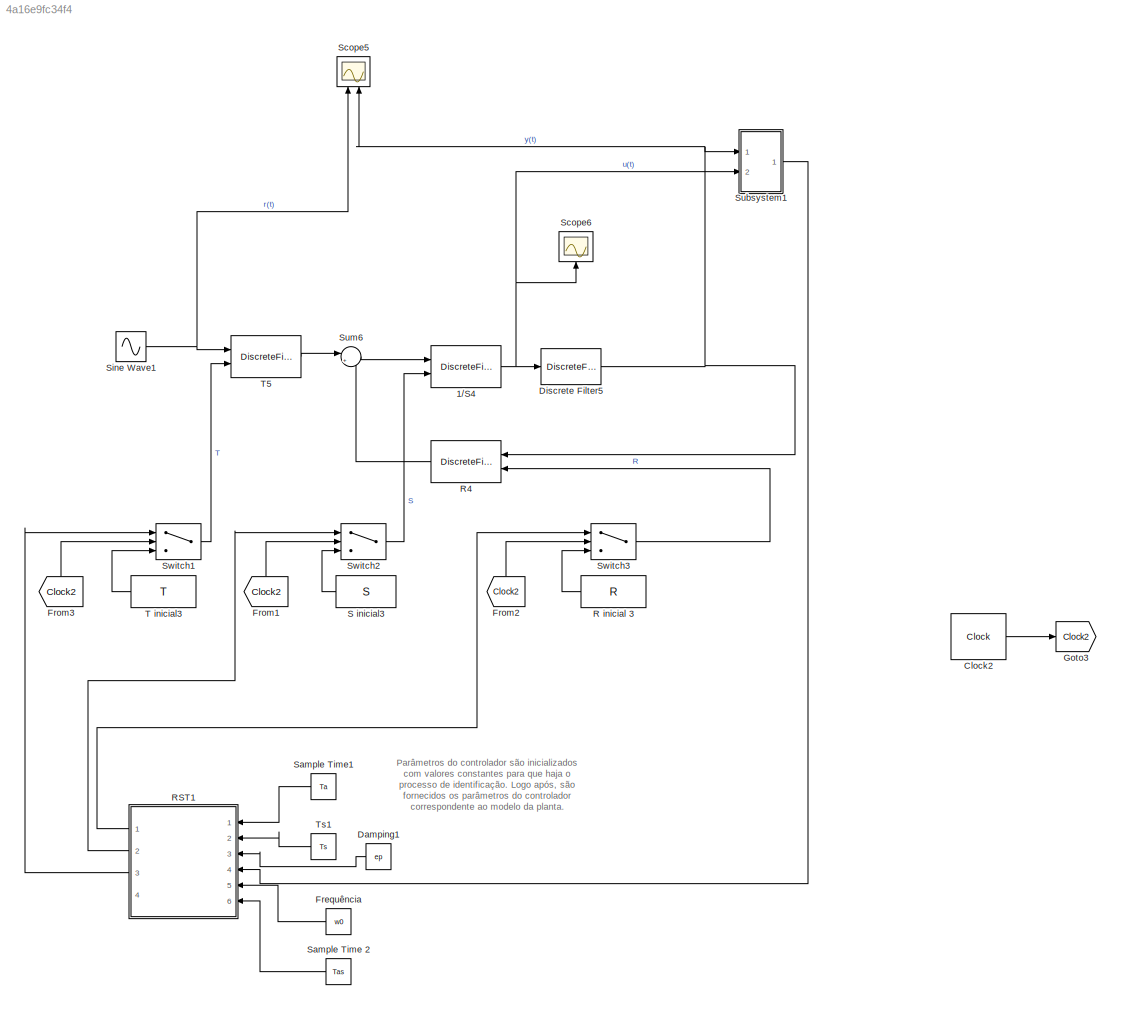
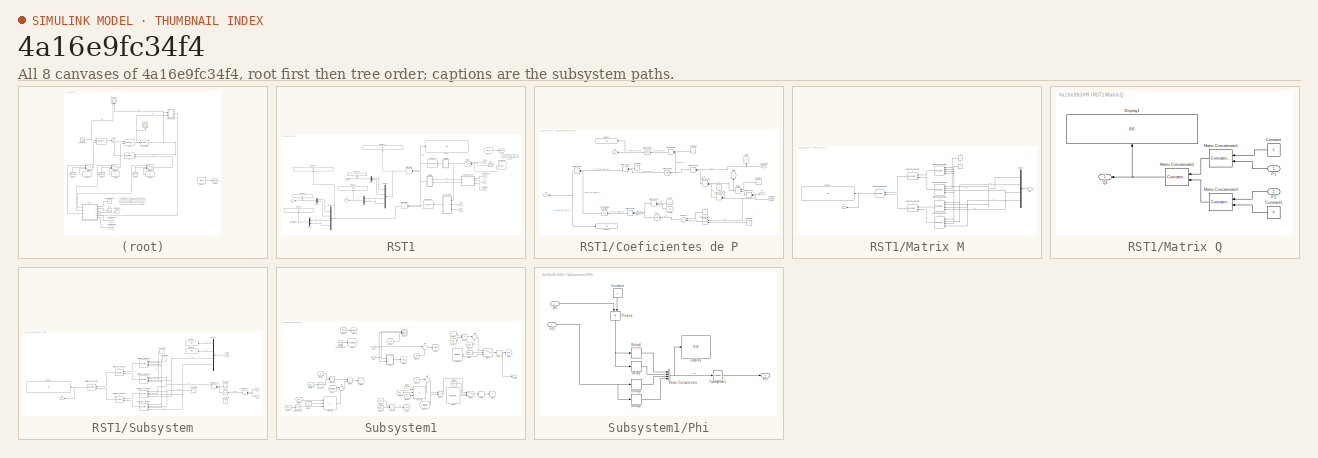
[diagram: thumbnail index - all 8 canvases of the model, root first then tree order]
MODEL slx_4a16e9fc34f4
KIND model
CONFIG AbsTol = auto
CONFIG EnableMultiTasking = off
CONFIG FixedStep = auto
CONFIG MaxStep = auto
CONFIG MinStep = auto
CONFIG RelTol = 1e-3
CONFIG SampleTimeConstraint = Unconstrained
CONFIG Solver = VariableStepAuto
CONFIG SolverName = VariableStepAuto
CONFIG StartTime = 0.0
CONFIG StopTime = 100
BLOCK [DiscreteFilter] 1//S4
  Denominator = 1
  DenominatorSource = Input port
  InputPortMap = u0,p3
  Numerator = 1
  Ports = [2, 1]
  a0EqualsOne = on
BLOCK [Clock] Clock2
  DisplayTime = on
BLOCK [Constant] Damping1
  Value = ep
BLOCK [DiscreteFilter] Discrete Filter5
  Denominator = A
  InputPortMap = u0
  Numerator = B
  Ports = [1, 1]
  a0EqualsOne = on
BLOCK [Constant] Frequência
  Value = w0
BLOCK [From] From1
  GotoTag = Clock2
BLOCK [From] From2
  GotoTag = Clock2
BLOCK [From] From3
  GotoTag = Clock2
BLOCK [Goto] Goto3
  GotoTag = Clock2
BLOCK [Constant] R inicial 3
  Value = R
BLOCK [DiscreteFilter] R4
  Denominator = 1
  InputPortMap = u0,p1
  Numerator = [-620.2 131.3]
  NumeratorSource = Input port
  Ports = [2, 1]
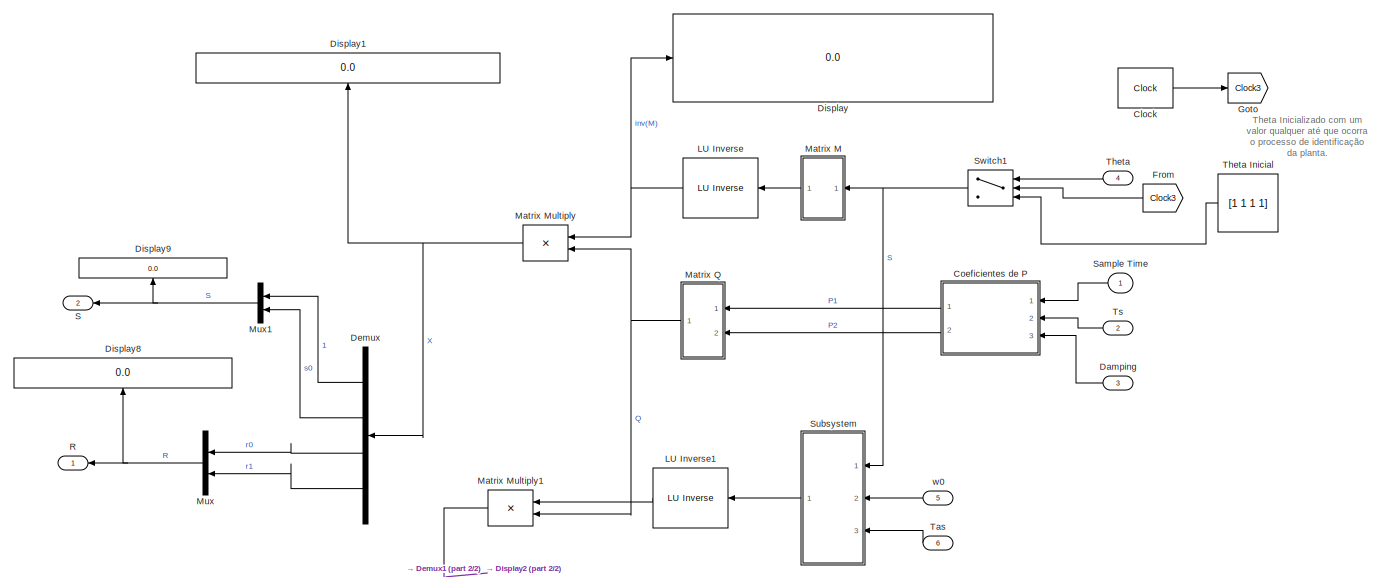
[diagram: RST1 - part 1/2, most of the canvas]
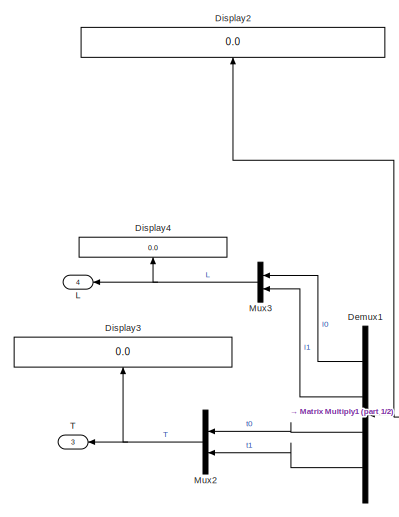
[diagram: RST1 - part 2/2, middle left region]
BLOCK [SubSystem] RST1
  Ports = [6, 4]
  RequestExecContextInheritance = off
BLOCK [Reference] RST1/ LU Inverse  REF=dspinverses/ LU Inverse
  Ports = [1, 1]
  SourceBlock = dspinverses/ LU Inverse
  SourceProductBaseCode = DS
  SourceProductName = DSP System Toolbox
  SourceType = LU Inverse
BLOCK [Reference] RST1/ LU Inverse1  REF=dspinverses/ LU Inverse
  Ports = [1, 1]
  SourceBlock = dspinverses/ LU Inverse
  SourceProductBaseCode = DS
  SourceProductName = DSP System Toolbox
  SourceType = LU Inverse
BLOCK [Clock] RST1/Clock
  DisplayTime = on
BLOCK [SubSystem] RST1/Coeficientes de P
  Ports = [3, 2]
  RequestExecContextInheritance = off
BLOCK [Constant] RST1/Coeficientes de P/ 
  Value = -1
BLOCK [Constant] RST1/Coeficientes de P/1
BLOCK [Constant] RST1/Coeficientes de P/Constant
  Value = 4
BLOCK [Constant] RST1/Coeficientes de P/Constant1
  Value = -2
BLOCK [Constant] RST1/Coeficientes de P/Constant2
  Value = 2
BLOCK [Constant] RST1/Coeficientes de P/Constant3
  Value = 2
BLOCK [Inport] RST1/Coeficientes de P/Damping
  IconDisplay = Port number
  Port = 3
BLOCK [Display] RST1/Coeficientes de P/Display1
  Decimation = 1
  Ports = [1]
BLOCK [Display] RST1/Coeficientes de P/Display3
  Decimation = 1
  Ports = [1]
BLOCK [Product] RST1/Coeficientes de P/Divide
  InputSameDT = off
  Inputs = */
  OutDataTypeStr = Inherit: Inherit via internal rule
  Ports = [2, 1]
  RndMeth = Floor
  SaturateOnIntegerOverflow = off
BLOCK [DotProduct] RST1/Coeficientes de P/Dot Product
  OutDataTypeStr = Inherit: Inherit via internal rule
BLOCK [DotProduct] RST1/Coeficientes de P/Dot Product1
  OutDataTypeStr = Inherit: Inherit via internal rule
BLOCK [DotProduct] RST1/Coeficientes de P/Dot Product2
  OutDataTypeStr = Inherit: Inherit via internal rule
BLOCK [DotProduct] RST1/Coeficientes de P/Dot Product3
  OutDataTypeStr = Inherit: Inherit via internal rule
BLOCK [DotProduct] RST1/Coeficientes de P/Dot Product4
  OutDataTypeStr = Inherit: Inherit via internal rule
BLOCK [DotProduct] RST1/Coeficientes de P/Dot Product5
  OutDataTypeStr = Inherit: Inherit via internal rule
BLOCK [DotProduct] RST1/Coeficientes de P/Dot Product6
  OutDataTypeStr = Inherit: Inherit via internal rule
BLOCK [DotProduct] RST1/Coeficientes de P/Dot Product7
  OutDataTypeStr = Inherit: Inherit via internal rule
BLOCK [DotProduct] RST1/Coeficientes de P/Dot Product8
  OutDataTypeStr = Inherit: Inherit via internal rule
BLOCK [From] RST1/Coeficientes de P/From
BLOCK [From] RST1/Coeficientes de P/From1
  GotoTag = B
BLOCK [Goto] RST1/Coeficientes de P/Goto
BLOCK [Goto] RST1/Coeficientes de P/Goto1
  GotoTag = B
BLOCK [Math] RST1/Coeficientes de P/Math Function
  Ports = [1, 1]
BLOCK [Math] RST1/Coeficientes de P/Math Function1
  Operator = pow
  Ports = [2, 1]
BLOCK [Math] RST1/Coeficientes de P/Math Function2
  Ports = [1, 1]
BLOCK [Outport] RST1/Coeficientes de P/P1
  IconDisplay = Port number
BLOCK [Outport] RST1/Coeficientes de P/P2
  IconDisplay = Port number
  Port = 2
BLOCK [Inport] RST1/Coeficientes de P/Sample Time
  IconDisplay = Port number
BLOCK [Sqrt] RST1/Coeficientes de P/Sqrt
BLOCK [Sum] RST1/Coeficientes de P/Subtract
  InputSameDT = off
  Inputs = +-
  OutDataTypeStr = Inherit: Inherit via internal rule
  Ports = [2, 1]
  SaturateOnIntegerOverflow = off
BLOCK [Trigonometry] RST1/Coeficientes de P/Trigonometric Function1
  Operator = cos
  Ports = [1, 1]
BLOCK [Inport] RST1/Coeficientes de P/Ts
  IconDisplay = Port number
  Port = 2
BLOCK [Inport] RST1/Damping
  IconDisplay = Port number
  Port = 3
BLOCK [Demux] RST1/Demux
  DisplayOption = bar
  Ports = [1, 4]
BLOCK [Demux] RST1/Demux1
  DisplayOption = bar
  Ports = [1, 4]
BLOCK [Display] RST1/Display
  Decimation = 1
  Ports = [1]
BLOCK [Display] RST1/Display1
  Decimation = 1
  Ports = [1]
BLOCK [Display] RST1/Display2
  Decimation = 1
  Ports = [1]
BLOCK [Display] RST1/Display3
  Decimation = 1
  Ports = [1]
BLOCK [Display] RST1/Display4
  Decimation = 1
  Ports = [1]
BLOCK [Display] RST1/Display8
  Decimation = 1
  Ports = [1]
BLOCK [Display] RST1/Display9
  Decimation = 1
  Ports = [1]
BLOCK [From] RST1/From
  GotoTag = Clock3
BLOCK [Goto] RST1/Goto
  GotoTag = Clock3
BLOCK [Outport] RST1/L
  IconDisplay = Port number
  Port = 4
BLOCK [SubSystem] RST1/Matrix M
  Ports = [1, 1]
  RequestExecContextInheritance = off
BLOCK [Constant] RST1/Matrix M/ 1
  Value = 0
BLOCK [Constant] RST1/Matrix M/2
BLOCK [Demux] RST1/Matrix M/Demux
  DisplayOption = bar
  Ports = [1, 4]
BLOCK [Display] RST1/Matrix M/Display1
  Decimation = 1
  Ports = [1]
BLOCK [Inport] RST1/Matrix M/In1
  IconDisplay = Port number
BLOCK [Outport] RST1/Matrix M/M
  IconDisplay = Port number
BLOCK [Concatenate] RST1/Matrix M/Matrix Concatenate10
  ConcatenateDimension = 2
  Mode = Multidimensional array
  NumInputs = 4
  Ports = [4, 1]
BLOCK [Concatenate] RST1/Matrix M/Matrix Concatenate11
  ConcatenateDimension = 2
  Mode = Multidimensional array
  NumInputs = 4
  Ports = [4, 1]
BLOCK [Concatenate] RST1/Matrix M/Matrix Concatenate12
  Mode = Multidimensional array
  Ports = [2, 1]
BLOCK [Concatenate] RST1/Matrix M/Matrix Concatenate13
  Mode = Multidimensional array
  Ports = [2, 1]
BLOCK [Concatenate] RST1/Matrix M/Matrix Concatenate14
  Mode = Multidimensional array
  Ports = [2, 1]
BLOCK [Concatenate] RST1/Matrix M/Matrix Concatenate6
  ConcatenateDimension = 2
  Mode = Multidimensional array
  NumInputs = 4
  Ports = [4, 1]
BLOCK [Concatenate] RST1/Matrix M/Matrix Concatenate9
  ConcatenateDimension = 2
  Mode = Multidimensional array
  NumInputs = 4
  Ports = [4, 1]
BLOCK [Product] RST1/Matrix Multiply
  InputSameDT = off
  Multiplication = Matrix(*)
  OutDataTypeStr = Inherit: Inherit via internal rule
  Ports = [2, 1]
  RndMeth = Floor
  SaturateOnIntegerOverflow = off
BLOCK [Product] RST1/Matrix Multiply1
  InputSameDT = off
  Multiplication = Matrix(*)
  OutDataTypeStr = Inherit: Inherit via internal rule
  Ports = [2, 1]
  RndMeth = Floor
  SaturateOnIntegerOverflow = off
BLOCK [SubSystem] RST1/Matrix Q
  Ports = [2, 1]
  RequestExecContextInheritance = off
BLOCK [Constant] RST1/Matrix Q/Constant
BLOCK [Constant] RST1/Matrix Q/Constant1
  Value = 0
BLOCK [Display] RST1/Matrix Q/Display1
  Decimation = 1
  Ports = [1]
BLOCK [Concatenate] RST1/Matrix Q/Matrix Concatenate1
  Mode = Multidimensional array
  Ports = [2, 1]
BLOCK [Concatenate] RST1/Matrix Q/Matrix Concatenate2
  Mode = Multidimensional array
  Ports = [2, 1]
BLOCK [Concatenate] RST1/Matrix Q/Matrix Concatenate3
  Mode = Multidimensional array
  Ports = [2, 1]
BLOCK [Inport] RST1/Matrix Q/P1
  IconDisplay = Port number
BLOCK [Inport] RST1/Matrix Q/P2
  IconDisplay = Port number
  Port = 2
BLOCK [Outport] RST1/Matrix Q/Q1
  IconDisplay = Port number
BLOCK [Mux] RST1/Mux
  DisplayOption = bar
  Inputs = 2
  Ports = [2, 1]
BLOCK [Mux] RST1/Mux1
  DisplayOption = bar
  Inputs = 2
  Ports = [2, 1]
BLOCK [Mux] RST1/Mux2
  DisplayOption = bar
  Inputs = 2
  Ports = [2, 1]
BLOCK [Mux] RST1/Mux3
  DisplayOption = bar
  Inputs = 2
  Ports = [2, 1]
BLOCK [Outport] RST1/R
  IconDisplay = Port number
BLOCK [Outport] RST1/S
  IconDisplay = Port number
  Port = 2
BLOCK [Inport] RST1/Sample Time
  IconDisplay = Port number
BLOCK [SubSystem] RST1/Subsystem
  Ports = [3, 1]
  RequestExecContextInheritance = off
BLOCK [Constant] RST1/Subsystem/Constant
  Value = -2
BLOCK [Constant] RST1/Subsystem/Constant1
BLOCK [Constant] RST1/Subsystem/Constant2
  Value = 0
BLOCK [Constant] RST1/Subsystem/Constant3
  Value = 0
BLOCK [Constant] RST1/Subsystem/Constant4
BLOCK [Trigonometry] RST1/Subsystem/Cos
  Operator = cos
  Ports = [1, 1]
BLOCK [Demux] RST1/Subsystem/Demux1
  DisplayOption = bar
  Ports = [1, 4]
BLOCK [Display] RST1/Subsystem/Display
  Decimation = 1
  Ports = [1]
BLOCK [Display] RST1/Subsystem/Display1
  Decimation = 1
  Ports = [1]
BLOCK [Display] RST1/Subsystem/Display2
  Decimation = 1
  Ports = [1]
BLOCK [DotProduct] RST1/Subsystem/Dot Product
  OutDataTypeStr = Inherit: Inherit via internal rule
BLOCK [DotProduct] RST1/Subsystem/Dot Product1
  OutDataTypeStr = Inherit: Inherit via internal rule
BLOCK [Outport] RST1/Subsystem/M2
  IconDisplay = Port number
BLOCK [Concatenate] RST1/Subsystem/Matrix Concatenate12
  Mode = Multidimensional array
  Ports = [2, 1]
BLOCK [Concatenate] RST1/Subsystem/Matrix Concatenate13
  Mode = Multidimensional array
  Ports = [2, 1]
BLOCK [Concatenate] RST1/Subsystem/Matrix Concatenate14
  Mode = Multidimensional array
  Ports = [2, 1]
BLOCK [Concatenate] RST1/Subsystem/Matrix Concatenate2
  ConcatenateDimension = 2
  Mode = Multidimensional array
  NumInputs = 4
  Ports = [4, 1]
BLOCK [Concatenate] RST1/Subsystem/Matrix Concatenate4
  ConcatenateDimension = 2
  Mode = Multidimensional array
  NumInputs = 4
  Ports = [4, 1]
BLOCK [Concatenate] RST1/Subsystem/Matrix Concatenate5
  ConcatenateDimension = 2
  Mode = Multidimensional array
  NumInputs = 4
  Ports = [4, 1]
BLOCK [Concatenate] RST1/Subsystem/Matrix Concatenate6
  ConcatenateDimension = 2
  Mode = Multidimensional array
  NumInputs = 4
  Ports = [4, 1]
BLOCK [Inport] RST1/Subsystem/Tas
  IconDisplay = Port number
  Port = 3
BLOCK [Inport] RST1/Subsystem/Theta
  IconDisplay = Port number
BLOCK [Inport] RST1/Subsystem/w0
  IconDisplay = Port number
  Port = 2
BLOCK [Switch] RST1/Switch1
  Criteria = u2 > Threshold
  InputSameDT = off
  SaturateOnIntegerOverflow = off
  Threshold = 1
BLOCK [Outport] RST1/T
  IconDisplay = Port number
  Port = 3
BLOCK [Inport] RST1/Tas
  IconDisplay = Port number
  Port = 6
BLOCK [Inport] RST1/Theta
  IconDisplay = Port number
  Port = 4
BLOCK [Constant] RST1/Theta Inicial
  Value = [1 1 1 1]
BLOCK [Inport] RST1/Ts
  IconDisplay = Port number
  Port = 2
BLOCK [Inport] RST1/w0
  IconDisplay = Port number
  Port = 5
BLOCK [Constant] S inicial3
  Value = S
BLOCK [Constant] Sample Time 2
  Value = Tas
BLOCK [Constant] Sample Time1
  Value = Ta
BLOCK [Scope] Scope5
  Floating = off
  NumInputPorts = 2
  Ports = [2]
  ScopeSpecificationString = Simulink.scopes.TimeScopeBlockCfg('CurrentConfiguration', extmgr.ConfigurationSet(extmgr.Configuration('Core','General UI',true),extmgr.Configuration('Core','Source UI',true),extmgr.Configuration('Sources','WiredSimulink',true,'DataLoggingVariableName','ScopeData1'),extmgr.Configuration('Visuals','Time Domain',true,'SerializedDisplays',{struct('MinYLimReal','-1.25648','MaxYLimReal','1.25558','YLab...<+1466ch>
BLOCK [Scope] Scope6
  Floating = off
  NumInputPorts = 1
  Ports = [1]
  ScopeSpecificationString = Simulink.scopes.TimeScopeBlockCfg('CurrentConfiguration', extmgr.ConfigurationSet(extmgr.Configuration('Core','General UI',true,'FigureColor',[0.156862745098039 0.156862745098039 0.156862745098039]),extmgr.Configuration('Core','Source UI',true),extmgr.Configuration('Sources','WiredSimulink',true,'DataLoggingVariableName','ScopeData2','DataLoggingSaveFormat','StructureWithTime','DataLoggingDecimati...<+3172ch>
BLOCK [Sin] Sine Wave1
  Ports = [0, 1]
  SampleTime = 0.1
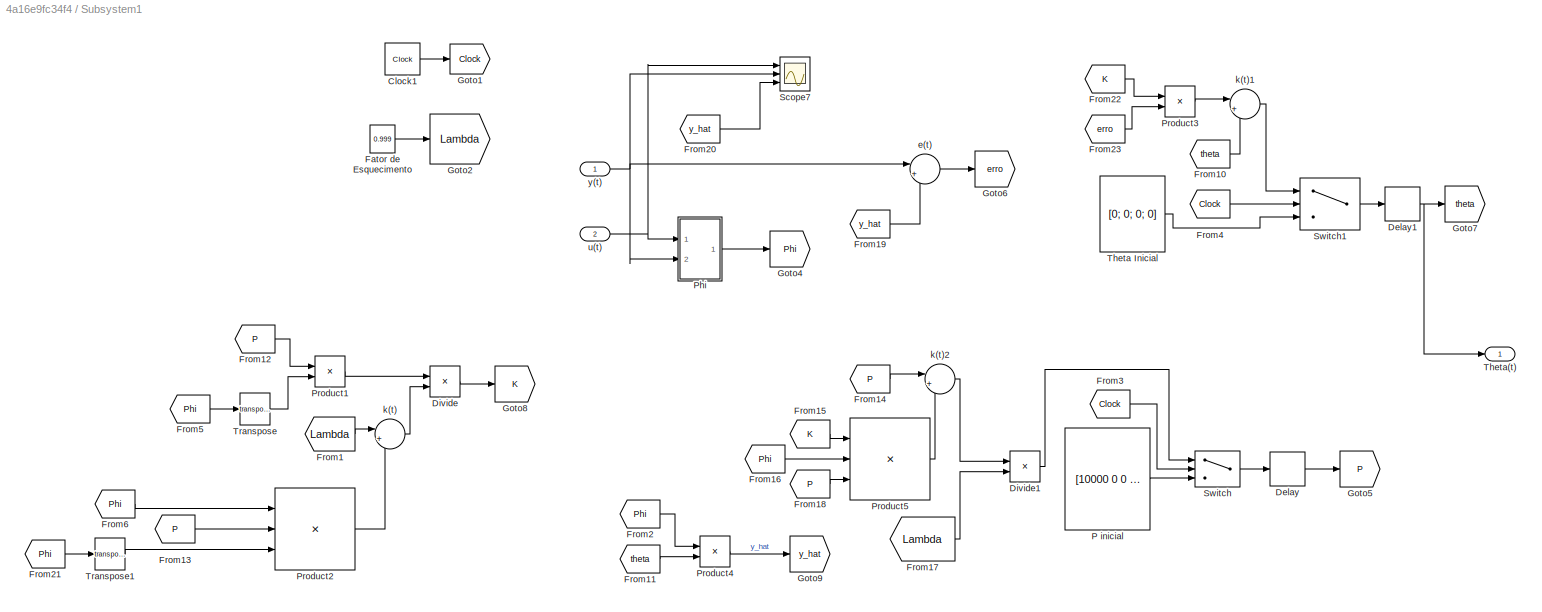
BLOCK [SubSystem] Subsystem1
  Ports = [2, 1]
  RequestExecContextInheritance = off
BLOCK [Clock] Subsystem1/Clock1
BLOCK [Delay] Subsystem1/Delay
  DelayLength = 1
  InitialCondition = 0
  InputPortMap = u0
  Ports = [1, 1]
BLOCK [Delay] Subsystem1/Delay1
  DelayLength = 1
  InitialCondition = 0
  InputPortMap = u0
  Ports = [1, 1]
BLOCK [Product] Subsystem1/Divide
  InputSameDT = off
  Inputs = */
  OutDataTypeStr = Inherit: Inherit via internal rule
  Ports = [2, 1]
  RndMeth = Floor
  SaturateOnIntegerOverflow = off
BLOCK [Product] Subsystem1/Divide1
  InputSameDT = off
  Inputs = */
  OutDataTypeStr = Inherit: Inherit via internal rule
  Ports = [2, 1]
  RndMeth = Floor
  SaturateOnIntegerOverflow = off
BLOCK [Constant] Subsystem1/Fator de Esquecimento 
  Value = 0.999
BLOCK [From] Subsystem1/From1
  GotoTag = Lambda
BLOCK [From] Subsystem1/From10
  GotoTag = theta
BLOCK [From] Subsystem1/From11
  GotoTag = theta
BLOCK [From] Subsystem1/From12
  GotoTag = P
BLOCK [From] Subsystem1/From13
  GotoTag = P
BLOCK [From] Subsystem1/From14
  GotoTag = P
BLOCK [From] Subsystem1/From15
  GotoTag = K
BLOCK [From] Subsystem1/From16
  GotoTag = Phi
BLOCK [From] Subsystem1/From17
  GotoTag = Lambda
BLOCK [From] Subsystem1/From18
  GotoTag = P
BLOCK [From] Subsystem1/From19
  GotoTag = y_hat
BLOCK [From] Subsystem1/From2
  GotoTag = Phi
BLOCK [From] Subsystem1/From20
  GotoTag = y_hat
BLOCK [From] Subsystem1/From21
  GotoTag = Phi
BLOCK [From] Subsystem1/From22
  GotoTag = K
BLOCK [From] Subsystem1/From23
  GotoTag = erro
BLOCK [From] Subsystem1/From3
  GotoTag = Clock
BLOCK [From] Subsystem1/From4
  GotoTag = Clock
BLOCK [From] Subsystem1/From5
  GotoTag = Phi
BLOCK [From] Subsystem1/From6
  GotoTag = Phi
BLOCK [Goto] Subsystem1/Goto1
  GotoTag = Clock
BLOCK [Goto] Subsystem1/Goto2
  GotoTag = Lambda
BLOCK [Goto] Subsystem1/Goto4
  GotoTag = Phi
BLOCK [Goto] Subsystem1/Goto5
  GotoTag = P
BLOCK [Goto] Subsystem1/Goto6
  GotoTag = erro
BLOCK [Goto] Subsystem1/Goto7
  GotoTag = theta
BLOCK [Goto] Subsystem1/Goto8
  GotoTag = K
BLOCK [Goto] Subsystem1/Goto9
  GotoTag = y_hat
BLOCK [Constant] Subsystem1/P inicial
  Value = [10000 0 0 0; 0 10000 0 0; 0 0 10000 0; 0 0 0 10000]
BLOCK [SubSystem] Subsystem1/Phi
  Ports = [2, 1]
  RequestExecContextInheritance = off
BLOCK [Constant] Subsystem1/Phi/Constant
  Value = -1
BLOCK [Delay] Subsystem1/Phi/Delay
  InputPortMap = u0
  Ports = [1, 1]
BLOCK [Delay] Subsystem1/Phi/Delay1
  DelayLength = 1
  InputPortMap = u0
  Ports = [1, 1]
BLOCK [Delay] Subsystem1/Phi/Delay2
  InputPortMap = u0
  Ports = [1, 1]
BLOCK [Delay] Subsystem1/Phi/Delay3
  DelayLength = 1
  InputPortMap = u0
  Ports = [1, 1]
BLOCK [Display] Subsystem1/Phi/Display
  Decimation = 1
  Ports = [1]
BLOCK [Outport] Subsystem1/Phi/Phi
  IconDisplay = Port number
BLOCK [Product] Subsystem1/Phi/Product
  InputSameDT = off
  OutDataTypeStr = Inherit: Inherit via internal rule
  Ports = [2, 1]
  RndMeth = Floor
  SaturateOnIntegerOverflow = off
BLOCK [Math] Subsystem1/Phi/Transpose1
  Operator = transpose
  Ports = [1, 1]
BLOCK [Concatenate] Subsystem1/Phi/Vector Concatenate
  NumInputs = 4
  Ports = [4, 1]
BLOCK [Inport] Subsystem1/Phi/u(t)
  IconDisplay = Port number
BLOCK [Inport] Subsystem1/Phi/y(t)
  IconDisplay = Port number
  Port = 2
BLOCK [Product] Subsystem1/Product1
  InputSameDT = off
  Multiplication = Matrix(*)
  OutDataTypeStr = Inherit: Inherit via internal rule
  Ports = [2, 1]
  RndMeth = Floor
  SaturateOnIntegerOverflow = off
BLOCK [Product] Subsystem1/Product2
  InputSameDT = off
  Inputs = 3
  Multiplication = Matrix(*)
  OutDataTypeStr = Inherit: Inherit via internal rule
  Ports = [3, 1]
  RndMeth = Floor
  SaturateOnIntegerOverflow = off
BLOCK [Product] Subsystem1/Product3
  InputSameDT = off
  Multiplication = Matrix(*)
  OutDataTypeStr = Inherit: Inherit via internal rule
  Ports = [2, 1]
  RndMeth = Floor
  SaturateOnIntegerOverflow = off
BLOCK [Product] Subsystem1/Product4
  InputSameDT = off
  Multiplication = Matrix(*)
  OutDataTypeStr = Inherit: Inherit via internal rule
  Ports = [2, 1]
  RndMeth = Floor
  SaturateOnIntegerOverflow = off
BLOCK [Product] Subsystem1/Product5
  InputSameDT = off
  Inputs = 3
  Multiplication = Matrix(*)
  OutDataTypeStr = Inherit: Inherit via internal rule
  Ports = [3, 1]
  RndMeth = Floor
  SaturateOnIntegerOverflow = off
BLOCK [Scope] Subsystem1/Scope7
  Floating = off
  NumInputPorts = 3
  Ports = [3]
  ScopeSpecificationString = Simulink.scopes.TimeScopeBlockCfg('CurrentConfiguration', extmgr.ConfigurationSet(extmgr.Configuration('Core','General UI',true,'FigureColor',[0.156862745098039 0.156862745098039 0.156862745098039]),extmgr.Configuration('Core','Source UI',true),extmgr.Configuration('Sources','WiredSimulink',true,'DataLoggingVariableName','ScopeData1','DataLoggingSaveFormat','StructureWithTime','DataLoggingDecimati...<+3159ch>
BLOCK [Switch] Subsystem1/Switch
  Criteria = u2 > Threshold
  InputSameDT = off
  SaturateOnIntegerOverflow = off
BLOCK [Switch] Subsystem1/Switch1
  Criteria = u2 > Threshold
  InputSameDT = off
  SaturateOnIntegerOverflow = off
BLOCK [Constant] Subsystem1/Theta Inicial 
  Value = [0; 0; 0; 0]
BLOCK [Outport] Subsystem1/Theta(t) 
  IconDisplay = Port number
BLOCK [Math] Subsystem1/Transpose
  Operator = transpose
  Ports = [1, 1]
BLOCK [Math] Subsystem1/Transpose1
  Operator = transpose
  Ports = [1, 1]
BLOCK [Sum] Subsystem1/e(t)
  IconShape = round
  InputSameDT = off
  Inputs = |+-
  OutDataTypeStr = Inherit: Inherit via internal rule
  Ports = [2, 1]
  SaturateOnIntegerOverflow = off
BLOCK [Sum] Subsystem1/k(t)
  IconShape = round
  InputSameDT = off
  Inputs = |++
  OutDataTypeStr = Inherit: Inherit via internal rule
  Ports = [2, 1]
  SaturateOnIntegerOverflow = off
BLOCK [Sum] Subsystem1/k(t)1
  IconShape = round
  InputSameDT = off
  Inputs = |++
  OutDataTypeStr = Inherit: Inherit via internal rule
  Ports = [2, 1]
  SaturateOnIntegerOverflow = off
BLOCK [Sum] Subsystem1/k(t)2
  IconShape = round
  InputSameDT = off
  Inputs = |+-
  OutDataTypeStr = Inherit: Inherit via internal rule
  Ports = [2, 1]
  SaturateOnIntegerOverflow = off
BLOCK [Inport] Subsystem1/u(t) 
  IconDisplay = Port number
  Port = 2
BLOCK [Inport] Subsystem1/y(t)
  IconDisplay = Port number
BLOCK [Sum] Sum6
  IconShape = round
  InputSameDT = off
  Inputs = |+-
  OutDataTypeStr = Inherit: Inherit via internal rule
  Ports = [2, 1]
  SaturateOnIntegerOverflow = off
BLOCK [Switch] Switch1
  Criteria = u2 > Threshold
  InputSameDT = off
  SaturateOnIntegerOverflow = off
  Threshold = tc
BLOCK [Switch] Switch2
  Criteria = u2 > Threshold
  InputSameDT = off
  SaturateOnIntegerOverflow = off
  Threshold = tc
BLOCK [Switch] Switch3
  Criteria = u2 > Threshold
  InputSameDT = off
  SaturateOnIntegerOverflow = off
  Threshold = tc
BLOCK [Constant] T inicial3
  Value = T
BLOCK [DiscreteFilter] T5
  Denominator = 1
  InputPortMap = u0,p1
  Numerator = 13.39
  NumeratorSource = Input port
  Ports = [2, 1]
BLOCK [Constant] Ts1
  Value = Ts
ANNOTATION (root): Parâmetros do controlador são inicializados com valores constantes para que haja o processo de identificação. Logo após, são fornecidos os parâmetros do controlador correspondente ao modelo da planta.
ANNOTATION RST1: Theta Inicializado com um valor qualquer até que ocorra o processo de identificação da planta.
NET 1//S4:1 -> Discrete Filter5:1, Scope6:1, Subsystem1:2
LINE Clock2:1 -> Goto3:1
LINE Damping1:1 -> RST1:3
NET Discrete Filter5:1 -> R4:1, Scope5:2, Subsystem1:1
LINE Frequência:1 -> RST1:5
LINE From1:1 -> Switch2:2
LINE From2:1 -> Switch3:2
LINE From3:1 -> Switch1:2
LINE R inicial 3:1 -> Switch3:3
LINE R4:1 -> Sum6:2
LINE RST1/ LU Inverse1:1 -> RST1/Matrix Multiply1:1
NET RST1/ LU Inverse:1 -> RST1/Display:1, RST1/Matrix Multiply:1
LINE RST1/Clock:1 -> RST1/Goto:1
LINE RST1/Coeficientes de P/ :1 -> RST1/Coeficientes de P/Dot Product3:1
LINE RST1/Coeficientes de P/1:1 -> RST1/Coeficientes de P/Subtract:1
LINE RST1/Coeficientes de P/Constant1:1 -> RST1/Coeficientes de P/Dot Product1:1
LINE RST1/Coeficientes de P/Constant2:1 -> RST1/Coeficientes de P/Math Function1:2
LINE RST1/Coeficientes de P/Constant3:1 -> RST1/Coeficientes de P/Dot Product8:1
LINE RST1/Coeficientes de P/Constant:1 -> RST1/Coeficientes de P/Divide:1
NET RST1/Coeficientes de P/Damping:1 -> RST1/Coeficientes de P/Dot Product3:2, RST1/Coeficientes de P/Dot Product:2, RST1/Coeficientes de P/Math Function1:1
NET RST1/Coeficientes de P/Divide:1 -> RST1/Coeficientes de P/Dot Product2:1, RST1/Coeficientes de P/Goto:1
LINE RST1/Coeficientes de P/Dot Product1:1 -> RST1/Coeficientes de P/Dot Product5:1
LINE RST1/Coeficientes de P/Dot Product2:1 -> RST1/Coeficientes de P/Dot Product4:2
LINE RST1/Coeficientes de P/Dot Product3:1 -> RST1/Coeficientes de P/Dot Product2:2
NET RST1/Coeficientes de P/Dot Product4:1 -> RST1/Coeficientes de P/Dot Product8:2, RST1/Coeficientes de P/Math Function:1
NET RST1/Coeficientes de P/Dot Product5:1 -> RST1/Coeficientes de P/Display3:1, RST1/Coeficientes de P/P1:1
LINE RST1/Coeficientes de P/Dot Product6:1 -> RST1/Coeficientes de P/Trigonometric Function1:1
LINE RST1/Coeficientes de P/Dot Product7:1 -> RST1/Coeficientes de P/Dot Product6:1
LINE RST1/Coeficientes de P/Dot Product8:1 -> RST1/Coeficientes de P/Math Function2:1
LINE RST1/Coeficientes de P/Dot Product:1 -> RST1/Coeficientes de P/Divide:2
LINE RST1/Coeficientes de P/From1:1 -> RST1/Coeficientes de P/Dot Product7:2
LINE RST1/Coeficientes de P/From:1 -> RST1/Coeficientes de P/Dot Product7:1
LINE RST1/Coeficientes de P/Math Function1:1 -> RST1/Coeficientes de P/Subtract:2
NET RST1/Coeficientes de P/Math Function2:1 -> RST1/Coeficientes de P/Display1:1, RST1/Coeficientes de P/P2:1
LINE RST1/Coeficientes de P/Math Function:1 -> RST1/Coeficientes de P/Dot Product1:2
NET RST1/Coeficientes de P/Sample Time:1 -> RST1/Coeficientes de P/Dot Product4:1, RST1/Coeficientes de P/Goto1:1
LINE RST1/Coeficientes de P/Sqrt:1 -> RST1/Coeficientes de P/Dot Product6:2
LINE RST1/Coeficientes de P/Subtract:1 -> RST1/Coeficientes de P/Sqrt:1
LINE RST1/Coeficientes de P/Trigonometric Function1:1 -> RST1/Coeficientes de P/Dot Product5:2
LINE RST1/Coeficientes de P/Ts:1 -> RST1/Coeficientes de P/Dot Product:1
LINE RST1/Coeficientes de P:1 -> RST1/Matrix Q:1
LINE RST1/Coeficientes de P:2 -> RST1/Matrix Q:2
LINE RST1/Damping:1 -> RST1/Coeficientes de P:3
LINE RST1/Demux1:1 -> RST1/Mux3:1
LINE RST1/Demux1:2 -> RST1/Mux3:2
LINE RST1/Demux1:3 -> RST1/Mux2:1
LINE RST1/Demux1:4 -> RST1/Mux2:2
LINE RST1/Demux:1 -> RST1/Mux1:1
LINE RST1/Demux:2 -> RST1/Mux1:2
LINE RST1/Demux:3 -> RST1/Mux:1
LINE RST1/Demux:4 -> RST1/Mux:2
LINE RST1/From:1 -> RST1/Switch1:2
NET RST1/Matrix M/ 1:1 -> RST1/Matrix M/Matrix Concatenate11:1, RST1/Matrix M/Matrix Concatenate11:3, RST1/Matrix M/Matrix Concatenate6:2, RST1/Matrix M/Matrix Concatenate6:3, RST1/Matrix M/Matrix Concatenate6:4, RST1/Matrix M/Matrix Concatenate9:4
NET RST1/Matrix M/2:1 -> RST1/Matrix M/Matrix Concatenate6:1, RST1/Matrix M/Matrix Concatenate9:2
NET RST1/Matrix M/Demux:1 -> RST1/Matrix M/Matrix Concatenate10:2, RST1/Matrix M/Matrix Concatenate9:1
NET RST1/Matrix M/Demux:2 -> RST1/Matrix M/Matrix Concatenate10:1, RST1/Matrix M/Matrix Concatenate11:2
NET RST1/Matrix M/Demux:3 -> RST1/Matrix M/Matrix Concatenate10:4, RST1/Matrix M/Matrix Concatenate9:3
NET RST1/Matrix M/Demux:4 -> RST1/Matrix M/Matrix Concatenate10:3, RST1/Matrix M/Matrix Concatenate11:4
LINE RST1/Matrix M/In1:1 -> RST1/Matrix M/Demux:1
LINE RST1/Matrix M/Matrix Concatenate10:1 -> RST1/Matrix M/Matrix Concatenate13:1
LINE RST1/Matrix M/Matrix Concatenate11:1 -> RST1/Matrix M/Matrix Concatenate13:2
LINE RST1/Matrix M/Matrix Concatenate12:1 -> RST1/Matrix M/Matrix Concatenate14:1
LINE RST1/Matrix M/Matrix Concatenate13:1 -> RST1/Matrix M/Matrix Concatenate14:2
NET RST1/Matrix M/Matrix Concatenate14:1 -> RST1/Matrix M/Display1:1, RST1/Matrix M/M:1
LINE RST1/Matrix M/Matrix Concatenate6:1 -> RST1/Matrix M/Matrix Concatenate12:1
LINE RST1/Matrix M/Matrix Concatenate9:1 -> RST1/Matrix M/Matrix Concatenate12:2
LINE RST1/Matrix M:1 -> RST1/ LU Inverse:1
NET RST1/Matrix Multiply1:1 -> RST1/Demux1:1, RST1/Display2:1
NET RST1/Matrix Multiply:1 -> RST1/Demux:1, RST1/Display1:1
LINE RST1/Matrix Q/Constant1:1 -> RST1/Matrix Q/Matrix Concatenate3:2
LINE RST1/Matrix Q/Constant:1 -> RST1/Matrix Q/Matrix Concatenate1:1
LINE RST1/Matrix Q/Matrix Concatenate1:1 -> RST1/Matrix Q/Matrix Concatenate2:1
NET RST1/Matrix Q/Matrix Concatenate2:1 -> RST1/Matrix Q/Display1:1, RST1/Matrix Q/Q1:1
LINE RST1/Matrix Q/Matrix Concatenate3:1 -> RST1/Matrix Q/Matrix Concatenate2:2
LINE RST1/Matrix Q/P1:1 -> RST1/Matrix Q/Matrix Concatenate1:2
LINE RST1/Matrix Q/P2:1 -> RST1/Matrix Q/Matrix Concatenate3:1
NET RST1/Matrix Q:1 -> RST1/Matrix Multiply1:2, RST1/Matrix Multiply:2
NET RST1/Mux1:1 -> RST1/Display9:1, RST1/S:1
NET RST1/Mux2:1 -> RST1/Display3:1, RST1/T:1
NET RST1/Mux3:1 -> RST1/Display4:1, RST1/L:1
NET RST1/Mux:1 -> RST1/Display8:1, RST1/R:1
LINE RST1/Sample Time:1 -> RST1/Coeficientes de P:1
NET RST1/Subsystem/Constant1:1 -> RST1/Subsystem/Matrix Concatenate4:1, RST1/Subsystem/Matrix Concatenate6:2
NET RST1/Subsystem/Constant3:1 -> RST1/Subsystem/Matrix Concatenate2:1, RST1/Subsystem/Matrix Concatenate2:3, RST1/Subsystem/Matrix Concatenate4:2, RST1/Subsystem/Matrix Concatenate4:3, RST1/Subsystem/Matrix Concatenate4:4, RST1/Subsystem/Matrix Concatenate6:4
NET RST1/Subsystem/Constant4:1 -> RST1/Subsystem/Matrix Concatenate2:2, RST1/Subsystem/Matrix Concatenate5:1
LINE RST1/Subsystem/Constant:1 -> RST1/Subsystem/Dot Product1:1
LINE RST1/Subsystem/Cos:1 -> RST1/Subsystem/Dot Product1:2
LINE RST1/Subsystem/Demux1:1 -> RST1/Subsystem/Display:1
LINE RST1/Subsystem/Demux1:2 -> RST1/Subsystem/Display2:1
NET RST1/Subsystem/Demux1:3 -> RST1/Subsystem/Matrix Concatenate5:4, RST1/Subsystem/Matrix Concatenate6:3
NET RST1/Subsystem/Demux1:4 -> RST1/Subsystem/Matrix Concatenate2:4, RST1/Subsystem/Matrix Concatenate5:3
NET RST1/Subsystem/Dot Product1:1 -> RST1/Subsystem/Matrix Concatenate5:2, RST1/Subsystem/Matrix Concatenate6:1
LINE RST1/Subsystem/Dot Product:1 -> RST1/Subsystem/Cos:1
LINE RST1/Subsystem/Matrix Concatenate12:1 -> RST1/Subsystem/Matrix Concatenate14:1
LINE RST1/Subsystem/Matrix Concatenate13:1 -> RST1/Subsystem/Matrix Concatenate14:2
NET RST1/Subsystem/Matrix Concatenate14:1 -> RST1/Subsystem/Display1:1, RST1/Subsystem/M2:1
LINE RST1/Subsystem/Matrix Concatenate2:1 -> RST1/Subsystem/Matrix Concatenate13:2
LINE RST1/Subsystem/Matrix Concatenate4:1 -> RST1/Subsystem/Matrix Concatenate12:1
LINE RST1/Subsystem/Matrix Concatenate5:1 -> RST1/Subsystem/Matrix Concatenate13:1
LINE RST1/Subsystem/Matrix Concatenate6:1 -> RST1/Subsystem/Matrix Concatenate12:2
LINE RST1/Subsystem/Tas:1 -> RST1/Subsystem/Dot Product:2
LINE RST1/Subsystem/Theta:1 -> RST1/Subsystem/Demux1:1
LINE RST1/Subsystem/w0:1 -> RST1/Subsystem/Dot Product:1
LINE RST1/Subsystem:1 -> RST1/ LU Inverse1:1
NET RST1/Switch1:1 -> RST1/Matrix M:1, RST1/Subsystem:1
LINE RST1/Tas:1 -> RST1/Subsystem:3
LINE RST1/Theta Inicial:1 -> RST1/Switch1:3
LINE RST1/Theta:1 -> RST1/Switch1:1
LINE RST1/Ts:1 -> RST1/Coeficientes de P:2
LINE RST1/w0:1 -> RST1/Subsystem:2
LINE RST1:1 -> Switch3:1
LINE RST1:2 -> Switch2:1
LINE RST1:3 -> Switch1:1
LINE S inicial3:1 -> Switch2:3
LINE Sample Time 2:1 -> RST1:6
LINE Sample Time1:1 -> RST1:1
NET Sine Wave1:1 -> Scope5:1, T5:1
LINE Subsystem1/Clock1:1 -> Subsystem1/Goto1:1
NET Subsystem1/Delay1:1 -> Subsystem1/Goto7:1, Subsystem1/Theta(t) :1
LINE Subsystem1/Delay:1 -> Subsystem1/Goto5:1
LINE Subsystem1/Divide1:1 -> Subsystem1/Switch:1
LINE Subsystem1/Divide:1 -> Subsystem1/Goto8:1
LINE Subsystem1/Fator de Esquecimento :1 -> Subsystem1/Goto2:1
LINE Subsystem1/From10:1 -> Subsystem1/k(t)1:2
LINE Subsystem1/From11:1 -> Subsystem1/Product4:2
LINE Subsystem1/From12:1 -> Subsystem1/Product1:1
LINE Subsystem1/From13:1 -> Subsystem1/Product2:2
LINE Subsystem1/From14:1 -> Subsystem1/k(t)2:1
LINE Subsystem1/From15:1 -> Subsystem1/Product5:1
LINE Subsystem1/From16:1 -> Subsystem1/Product5:2
LINE Subsystem1/From17:1 -> Subsystem1/Divide1:2
LINE Subsystem1/From18:1 -> Subsystem1/Product5:3
LINE Subsystem1/From19:1 -> Subsystem1/e(t):2
LINE Subsystem1/From1:1 -> Subsystem1/k(t):1
LINE Subsystem1/From20:1 -> Subsystem1/Scope7:3
LINE Subsystem1/From21:1 -> Subsystem1/Transpose1:1
LINE Subsystem1/From22:1 -> Subsystem1/Product3:1
LINE Subsystem1/From23:1 -> Subsystem1/Product3:2
LINE Subsystem1/From2:1 -> Subsystem1/Product4:1
LINE Subsystem1/From3:1 -> Subsystem1/Switch:2
LINE Subsystem1/From4:1 -> Subsystem1/Switch1:2
LINE Subsystem1/From5:1 -> Subsystem1/Transpose:1
LINE Subsystem1/From6:1 -> Subsystem1/Product2:1
LINE Subsystem1/P inicial:1 -> Subsystem1/Switch:3
LINE Subsystem1/Phi/Constant:1 -> Subsystem1/Phi/Product:2
LINE Subsystem1/Phi/Delay1:1 -> Subsystem1/Phi/Vector Concatenate:1
LINE Subsystem1/Phi/Delay2:1 -> Subsystem1/Phi/Vector Concatenate:4
LINE Subsystem1/Phi/Delay3:1 -> Subsystem1/Phi/Vector Concatenate:3
LINE Subsystem1/Phi/Delay:1 -> Subsystem1/Phi/Vector Concatenate:2
NET Subsystem1/Phi/Product:1 -> Subsystem1/Phi/Delay1:1, Subsystem1/Phi/Delay:1
LINE Subsystem1/Phi/Transpose1:1 -> Subsystem1/Phi/Phi:1
NET Subsystem1/Phi/Vector Concatenate:1 -> Subsystem1/Phi/Display:1, Subsystem1/Phi/Transpose1:1
NET Subsystem1/Phi/u(t):1 -> Subsystem1/Phi/Delay2:1, Subsystem1/Phi/Delay3:1
LINE Subsystem1/Phi/y(t):1 -> Subsystem1/Phi/Product:1
LINE Subsystem1/Phi:1 -> Subsystem1/Goto4:1
LINE Subsystem1/Product1:1 -> Subsystem1/Divide:1
LINE Subsystem1/Product2:1 -> Subsystem1/k(t):2
LINE Subsystem1/Product3:1 -> Subsystem1/k(t)1:1
LINE Subsystem1/Product4:1 -> Subsystem1/Goto9:1
LINE Subsystem1/Product5:1 -> Subsystem1/k(t)2:2
LINE Subsystem1/Switch1:1 -> Subsystem1/Delay1:1
LINE Subsystem1/Switch:1 -> Subsystem1/Delay:1
LINE Subsystem1/Theta Inicial :1 -> Subsystem1/Switch1:3
LINE Subsystem1/Transpose1:1 -> Subsystem1/Product2:3
LINE Subsystem1/Transpose:1 -> Subsystem1/Product1:2
LINE Subsystem1/e(t):1 -> Subsystem1/Goto6:1
LINE Subsystem1/k(t)1:1 -> Subsystem1/Switch1:1
LINE Subsystem1/k(t)2:1 -> Subsystem1/Divide1:1
LINE Subsystem1/k(t):1 -> Subsystem1/Divide:2
NET Subsystem1/u(t) :1 -> Subsystem1/Phi:1, Subsystem1/Scope7:1
NET Subsystem1/y(t):1 -> Subsystem1/Phi:2, Subsystem1/Scope7:2, Subsystem1/e(t):1
LINE Subsystem1:1 -> RST1:4
LINE Sum6:1 -> 1//S4:1
LINE Switch1:1 -> T5:2
LINE Switch2:1 -> 1//S4:2
LINE Switch3:1 -> R4:2
LINE T inicial3:1 -> Switch1:3
LINE T5:1 -> Sum6:1
LINE Ts1:1 -> RST1:2
note: NET lines group one-source signal fan-out (src -> all destinations, sorted); 1:1 wires keep LINE
